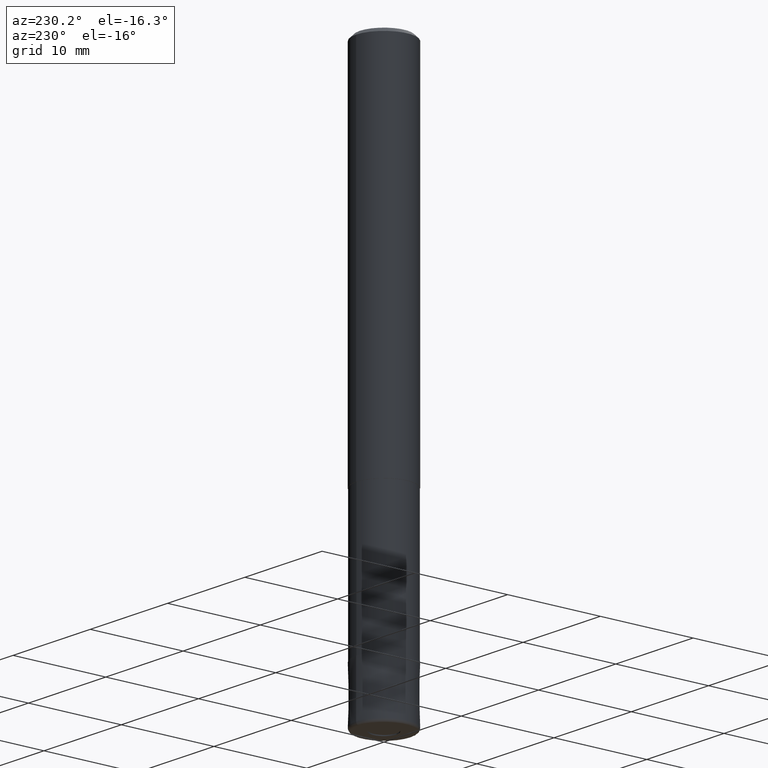
[diagram: clean part render]
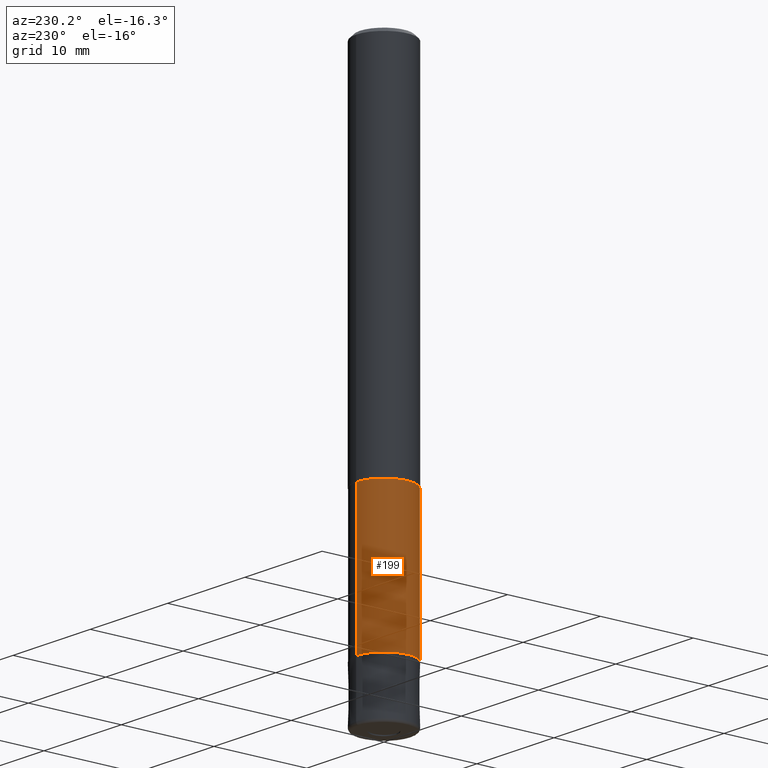
[diagram: same view with one face highlighted and labeled with its STEP entity id]
A machine part, auxiliary view. The second image highlights one B-rep face of the part: STEP entity #199.
In plain terms, the highlighted cylindrical surface (edge-blend (fillet) strip) has radius 2.975 mm, axis along (-0, -0, 1).
Its self-contained STEP definition (entity closure, byte-faithful):
#117=VERTEX_POINT('',#304);
#125=EDGE_CURVE('',#153,#151,#313,.T.);
#151=VERTEX_POINT('',#339);
#153=VERTEX_POINT('',#341);
#175=EDGE_CURVE('',#227,#117,#367,.T.);
#187=EDGE_CURVE('',#151,#227,#381,.T.);
#199=ADVANCED_FACE('',(#394),#395,.T.);
#213=EDGE_CURVE('',#153,#117,#411,.T.);
#227=VERTEX_POINT('',#427);
#304=CARTESIAN_POINT('',(0.0,2.97495,-54.0));
#313=LINE('',#518,#519);
#339=CARTESIAN_POINT('',(3.64314267230388E-016,-2.97495,-39.0));
#341=CARTESIAN_POINT('',(3.64314267230388E-016,-2.97495,-54.0));
#367=LINE('',#585,#586);
#381=CIRCLE('',#605,2.97495);
#394=FACE_OUTER_BOUND('',#623,.T.);
#395=CYLINDRICAL_SURFACE('',#624,2.97495);
#411=CIRCLE('',#644,2.97495);
#427=CARTESIAN_POINT('',(0.0,2.97495,-39.0));
#518=CARTESIAN_POINT('',(3.64314267230388E-016,-2.97495,-46.5));
#519=VECTOR('',#758,1.0);
#585=CARTESIAN_POINT('',(-3.64314267230388E-016,2.97495,-46.5));
#586=VECTOR('',#826,1.0);
#605=AXIS2_PLACEMENT_3D('',#837,#838,#839);
#623=EDGE_LOOP('',(#859,#860,#861,#862));
#624=AXIS2_PLACEMENT_3D('',#863,#864,#865);
#644=AXIS2_PLACEMENT_3D('',#886,#887,#888);
#758=DIRECTION('',(-0.0,-0.0,1.0));
#826=DIRECTION('',(0.0,0.0,-1.0));
#837=CARTESIAN_POINT('',(0.0,0.0,-39.0));
#838=DIRECTION('',(0.0,0.0,-1.0));
#839=DIRECTION('',(0.0,1.0,0.0));
#859=ORIENTED_EDGE('',*,*,#175,.T.);
#860=ORIENTED_EDGE('',*,*,#213,.F.);
#861=ORIENTED_EDGE('',*,*,#125,.T.);
#862=ORIENTED_EDGE('',*,*,#187,.T.);
#863=CARTESIAN_POINT('',(0.0,0.0,-46.5));
#864=DIRECTION('',(-0.0,-0.0,1.0));
#865=DIRECTION('',(0.0,1.0,0.0));
#886=CARTESIAN_POINT('',(0.0,0.0,-54.0));
#887=DIRECTION('',(0.0,0.0,-1.0));
#888=DIRECTION('',(0.0,1.0,0.0));